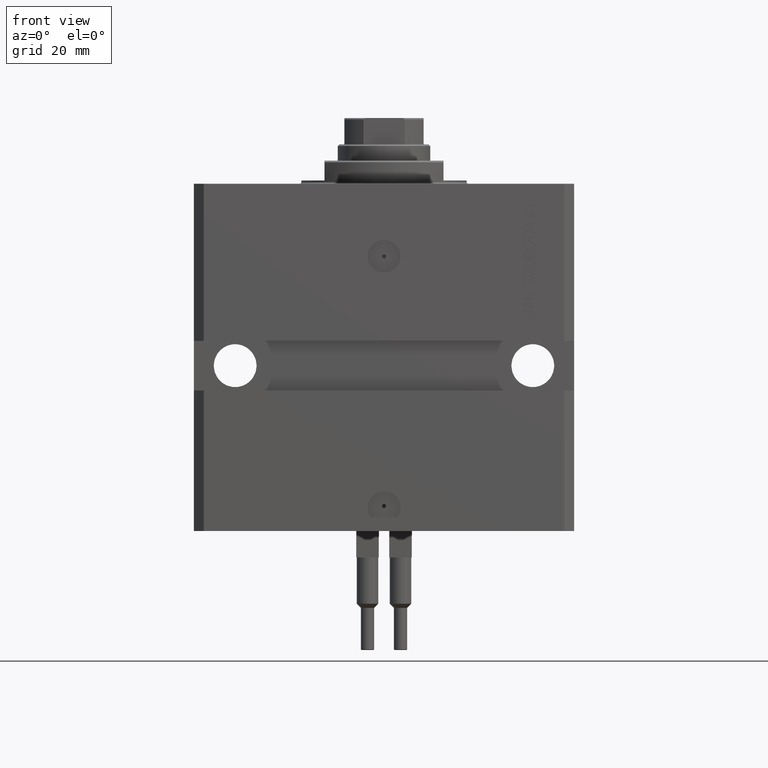
[diagram: clean part render]
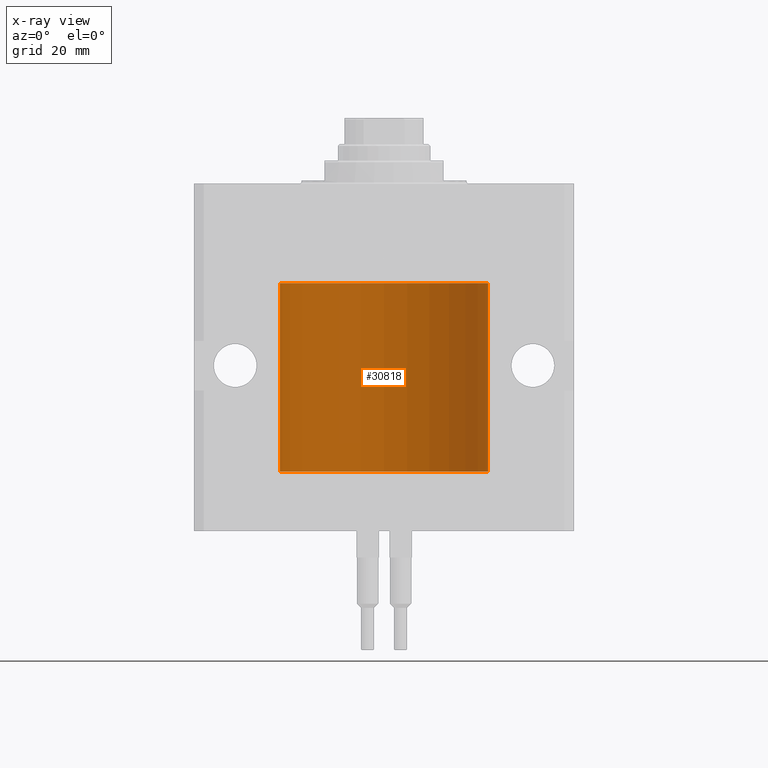
[diagram: x-ray — body ghosted, one internal face saturated and labeled with its STEP entity id]
A machine part, front view, then the same camera in x-ray: the body is ghosted and one INTERNAL B-rep face — a face not visible from any outside direction — is saturated and labeled: STEP entity #30818.
In plain terms, the highlighted cylindrical surface (partial cylindrical patch) has radius 31.5 mm, axis along (0, 0, 1).
Its self-contained STEP definition (entity closure, byte-faithful):
#561 = VECTOR ( 'NONE', #24803, 1000.000000000000000 ) ;
#1049 = B_SPLINE_CURVE_WITH_KNOTS ( 'NONE', 3,
 ( #42570, #34698, #23566, #46603, #30894, #34944, #38999, #7902 ),
 .UNSPECIFIED., .F., .F.,
 ( 4, 2, 2, 4 ),
 ( 2.422664849601941982E-18, 0.0002443157997801665674, 0.0004886315995603306411, 0.0009772631991206588969 ),
 .UNSPECIFIED. ) ;
#1169 = VERTEX_POINT ( 'NONE', #18472 ) ;
#3649 = CARTESIAN_POINT ( 'NONE',  ( 0.000000000000000000, 0.000000000000000000, -87.10000000000000853 ) ) ;
#3680 = CARTESIAN_POINT ( 'NONE',  ( -31.50000000000006395, 3.480981129463732167E-13, -84.62500000000324007 ) ) ;
#4251 = CARTESIAN_POINT ( 'NONE',  ( 31.50000000000006395, 3.442404755096224483E-13, -83.37499999999675993 ) ) ;
#4323 = AXIS2_PLACEMENT_3D ( 'NONE', #3649, #48936, #33487 ) ;
#4979 = ORIENTED_EDGE ( 'NONE', *, *, #41329, .F. ) ;
#5277 = CARTESIAN_POINT ( 'NONE',  ( -31.49379784581975272, 0.6250577973157672718, -84.16284184848845484 ) ) ;
#5725 = VERTEX_POINT ( 'NONE', #33024 ) ;
#6025 = CARTESIAN_POINT ( 'NONE',  ( -31.49999999999998579, 0.1631661150515253123, -84.62499999999982947 ) ) ;
#6165 = CARTESIAN_POINT ( 'NONE',  ( 31.49379899281745665, 0.6250000000082825968, -83.99999999999904787 ) ) ;
#6195 = CARTESIAN_POINT ( 'NONE',  ( -31.50000000000000000, 7.975607743522037396E-16, -83.37500000000000000 ) ) ;
#7081 = VERTEX_POINT ( 'NONE', #28914 ) ;
#7147 = EDGE_CURVE ( 'NONE', #38853, #20780, #1049, .T. ) ;
#7902 = CARTESIAN_POINT ( 'NONE',  ( 31.49379899281745665, 0.6250000000082825968, -83.99999999999904787 ) ) ;
#8166 = ORIENTED_EDGE ( 'NONE', *, *, #31780, .T. ) ;
#8176 = LINE ( 'NONE', #30678, #35875 ) ;
#8287 = CARTESIAN_POINT ( 'NONE',  ( 31.49853627283156499, 0.3253078817183396310, -83.44140989403643971 ) ) ;
#8322 = VECTOR ( 'NONE', #46677, 1000.000000000000000 ) ;
#9041 = B_SPLINE_CURVE_WITH_KNOTS ( 'NONE', 3,
 ( #28763, #43718, #13592, #17131, #20936, #17378, #32298, #5277, #43973, #24477, #6025, #44226 ),
 .UNSPECIFIED., .F., .F.,
 ( 4, 2, 2, 2, 2, 4 ),
 ( 3.075703443732137786E-18, 0.0002442604562134845204, 0.0004885209124269658965, 0.0009770418248538992670, 0.001465562737280832637, 0.001954083649707766008 ),
 .UNSPECIFIED. ) ;
#9627 = EDGE_CURVE ( 'NONE', #20780, #9785, #38202, .T. ) ;
#9785 = VERTEX_POINT ( 'NONE', #28247 ) ;
#10654 = CARTESIAN_POINT ( 'NONE',  ( 0.000000000000000000, 0.000000000000000000, -30.10000000000000142 ) ) ;
#11835 = CARTESIAN_POINT ( 'NONE',  ( 31.49379899281745665, 0.6250000000082825968, -83.99999999999904787 ) ) ;
#12078 = CARTESIAN_POINT ( 'NONE',  ( 31.49526225382467359, 0.5586305680866429091, -83.67476160622149450 ) ) ;
#13592 = CARTESIAN_POINT ( 'NONE',  ( -31.49966591610109390, 0.1636376958180636443, -83.39126189995840832 ) ) ;
#15018 = FACE_OUTER_BOUND ( 'NONE', #36755, .T. ) ;
#15812 = LINE ( 'NONE', #31215, #8322 ) ;
#16465 = VERTEX_POINT ( 'NONE', #3680 ) ;
#17131 = CARTESIAN_POINT ( 'NONE',  ( -31.49851563474691218, 0.3150284575672411824, -83.45401791159622462 ) ) ;
#17378 = CARTESIAN_POINT ( 'NONE',  ( -31.49528028230855270, 0.5573323339569611345, -83.67349008819321909 ) ) ;
#17786 = EDGE_CURVE ( 'NONE', #1169, #23795, #45818, .T. ) ;
#18472 = CARTESIAN_POINT ( 'NONE',  ( 31.50000000000000000, 0.000000000000000000, -30.10000000000000142 ) ) ;
#19209 = ORIENTED_EDGE ( 'NONE', *, *, #9627, .T. ) ;
#19990 = CARTESIAN_POINT ( 'NONE',  ( 31.50000000000000000, -2.492939093807799249E-15, -84.62499999999998579 ) ) ;
#20780 = VERTEX_POINT ( 'NONE', #6165 ) ;
#20936 = CARTESIAN_POINT ( 'NONE',  ( -31.49770767031179730, 0.3843648832734379295, -83.50046081259654329 ) ) ;
#21144 = EDGE_CURVE ( 'NONE', #5725, #38853, #47591, .T. ) ;
#22661 = VECTOR ( 'NONE', #36449, 1000.000000000000000 ) ;
#22845 = CYLINDRICAL_SURFACE ( 'NONE', #4323, 31.50000000000000000 ) ;
#22866 = VERTEX_POINT ( 'NONE', #6195 ) ;
#23566 = CARTESIAN_POINT ( 'NONE',  ( 31.49966575203785268, 0.1636755595825563903, -84.60873030821188934 ) ) ;
#23795 = VERTEX_POINT ( 'NONE', #32750 ) ;
#24477 = CARTESIAN_POINT ( 'NONE',  ( -31.49853548231893541, 0.3253851488062164399, -84.55855470525685291 ) ) ;
#24682 = ORIENTED_EDGE ( 'NONE', *, *, #32332, .T. ) ;
#24803 = DIRECTION ( 'NONE',  ( -0.000000000000000000, -0.000000000000000000, 1.000000000000000000 ) ) ;
#26962 = ORIENTED_EDGE ( 'NONE', *, *, #42158, .F. ) ;
#28247 = CARTESIAN_POINT ( 'NONE',  ( 31.50000000000006395, 3.442404755096224483E-13, -83.37499999999675993 ) ) ;
#28763 = CARTESIAN_POINT ( 'NONE',  ( -31.50000000000000000, 7.975607743522037396E-16, -83.37500000000000000 ) ) ;
#28914 = CARTESIAN_POINT ( 'NONE',  ( -31.50000000000000000, 3.857637417314161900E-15, -87.10000000000000853 ) ) ;
#29621 = DIRECTION ( 'NONE',  ( 1.000000000000000000, 0.000000000000000000, 0.000000000000000000 ) ) ;
#29648 = EDGE_CURVE ( 'NONE', #22866, #23795, #15812, .T. ) ;
#30576 = ORIENTED_EDGE ( 'NONE', *, *, #17786, .T. ) ;
#30678 = CARTESIAN_POINT ( 'NONE',  ( 31.50000000000000000, 0.000000000000000000, -87.10000000000000853 ) ) ;
#30818 = ADVANCED_FACE ( 'NONE', ( #15018 ), #22845, .F. ) ;
#30894 = CARTESIAN_POINT ( 'NONE',  ( 31.49770674525946390, 0.3844410175904657834, -84.49948347834464357 ) ) ;
#31215 = CARTESIAN_POINT ( 'NONE',  ( -31.50000000000000000, 3.857637417314161900E-15, -87.10000000000000853 ) ) ;
#31277 = AXIS2_PLACEMENT_3D ( 'NONE', #10654, #45322, #29621 ) ;
#31620 = CARTESIAN_POINT ( 'NONE',  ( -31.50000000000000000, 3.857637417314161900E-15, -87.10000000000000853 ) ) ;
#31780 = EDGE_CURVE ( 'NONE', #22866, #16465, #9041, .T. ) ;
#32298 = CARTESIAN_POINT ( 'NONE',  ( -31.49380014137585704, 0.6249421240571523262, -83.83671479190289233 ) ) ;
#32332 = EDGE_CURVE ( 'NONE', #9785, #1169, #8176, .T. ) ;
#32750 = CARTESIAN_POINT ( 'NONE',  ( -31.50000000000000000, 3.857637417314161900E-15, -30.10000000000000142 ) ) ;
#33024 = CARTESIAN_POINT ( 'NONE',  ( 31.50000000000000000, 0.000000000000000000, -87.10000000000000853 ) ) ;
#33487 = DIRECTION ( 'NONE',  ( 1.000000000000000000, 0.000000000000000000, 0.000000000000000000 ) ) ;
#34698 = CARTESIAN_POINT ( 'NONE',  ( 31.50000000000000000, 0.08261130139621999935, -84.62499999999995737 ) ) ;
#34944 = CARTESIAN_POINT ( 'NONE',  ( 31.49527883250257432, 0.5574151849338155884, -84.32638608454756479 ) ) ;
#35684 = ORIENTED_EDGE ( 'NONE', *, *, #21144, .T. ) ;
#35875 = VECTOR ( 'NONE', #38548, 1000.000000000000000 ) ;
#36449 = DIRECTION ( 'NONE',  ( -0.000000000000000000, -0.000000000000000000, 1.000000000000000000 ) ) ;
#36755 = EDGE_LOOP ( 'NONE', ( #26962, #4979, #35684, #45960, #19209, #24682, #30576, #37111, #8166 ) ) ;
#37111 = ORIENTED_EDGE ( 'NONE', *, *, #29648, .F. ) ;
#38202 = B_SPLINE_CURVE_WITH_KNOTS ( 'NONE', 3,
 ( #11835, #42953, #12078, #8287, #38887, #4251 ),
 .UNSPECIFIED., .F., .F.,
 ( 4, 2, 4 ),
 ( 0.0009772631991206588969, 0.001465673424414194563, 0.001954083649707730446 ),
 .UNSPECIFIED. ) ;
#38431 = DIRECTION ( 'NONE',  ( 1.000000000000000000, 0.000000000000000000, 0.000000000000000000 ) ) ;
#38548 = DIRECTION ( 'NONE',  ( -0.000000000000000000, -0.000000000000000000, 1.000000000000000000 ) ) ;
#38853 = VERTEX_POINT ( 'NONE', #19990 ) ;
#38887 = CARTESIAN_POINT ( 'NONE',  ( 31.50000000000000000, 0.1631291455194407158, -83.37500000000014211 ) ) ;
#38999 = CARTESIAN_POINT ( 'NONE',  ( 31.49379899281760942, 0.6250000000003405054, -84.16310352862699062 ) ) ;
#40018 = CARTESIAN_POINT ( 'NONE',  ( 31.50000000000000000, 0.000000000000000000, -87.10000000000000853 ) ) ;
#41329 = EDGE_CURVE ( 'NONE', #5725, #7081, #43477, .T. ) ;
#41736 = CARTESIAN_POINT ( 'NONE',  ( 0.000000000000000000, 0.000000000000000000, -87.10000000000000853 ) ) ;
#42158 = EDGE_CURVE ( 'NONE', #7081, #16465, #44050, .T. ) ;
#42570 = CARTESIAN_POINT ( 'NONE',  ( 31.50000000000000000, -2.492939093807799249E-15, -84.62499999999998579 ) ) ;
#42953 = CARTESIAN_POINT ( 'NONE',  ( 31.49379899281762363, 0.6249999999996236344, -83.83697036533064306 ) ) ;
#43477 = CIRCLE ( 'NONE', #47511, 31.50000000000000000 ) ;
#43718 = CARTESIAN_POINT ( 'NONE',  ( -31.49999999999998579, 0.08259258789479478891, -83.37499999999998579 ) ) ;
#43973 = CARTESIAN_POINT ( 'NONE',  ( -31.49526081842315151, 0.5587119163470756211, -84.32511513093052713 ) ) ;
#44050 = LINE ( 'NONE', #31620, #561 ) ;
#44226 = CARTESIAN_POINT ( 'NONE',  ( -31.50000000000006395, 3.480981129463732167E-13, -84.62500000000324007 ) ) ;
#45322 = DIRECTION ( 'NONE',  ( 0.000000000000000000, 0.000000000000000000, 1.000000000000000000 ) ) ;
#45818 = CIRCLE ( 'NONE', #31277, 31.50000000000000000 ) ;
#45960 = ORIENTED_EDGE ( 'NONE', *, *, #7147, .T. ) ;
#46273 = DIRECTION ( 'NONE',  ( 0.000000000000000000, 0.000000000000000000, 1.000000000000000000 ) ) ;
#46603 = CARTESIAN_POINT ( 'NONE',  ( 31.49851501686590893, 0.3150934959385818801, -84.54594721883857744 ) ) ;
#46677 = DIRECTION ( 'NONE',  ( -0.000000000000000000, -0.000000000000000000, 1.000000000000000000 ) ) ;
#47511 = AXIS2_PLACEMENT_3D ( 'NONE', #41736, #46273, #38431 ) ;
#47591 = LINE ( 'NONE', #40018, #22661 ) ;
#48936 = DIRECTION ( 'NONE',  ( -0.000000000000000000, -0.000000000000000000, 1.000000000000000000 ) ) ;